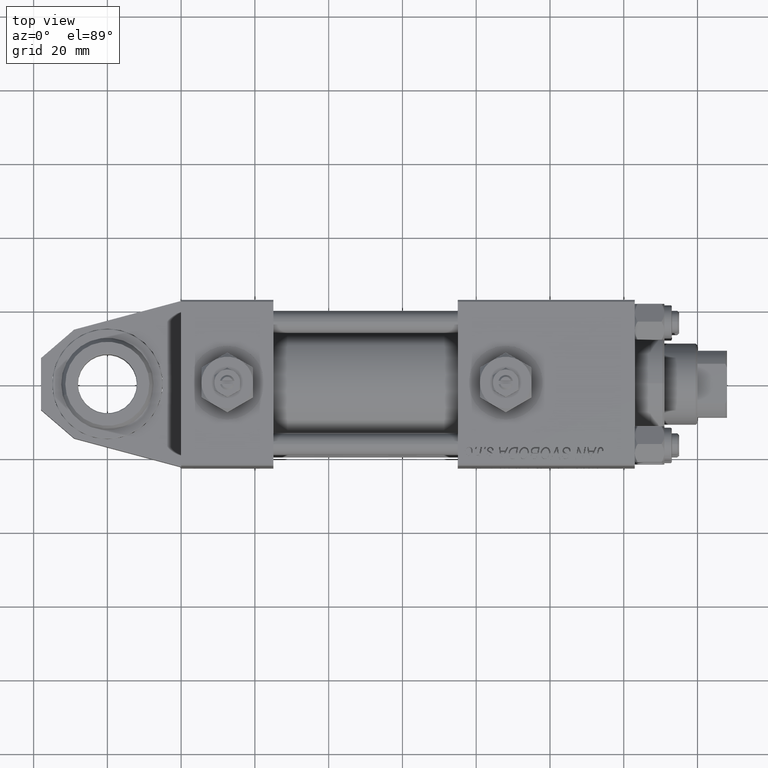
[diagram: clean part render]
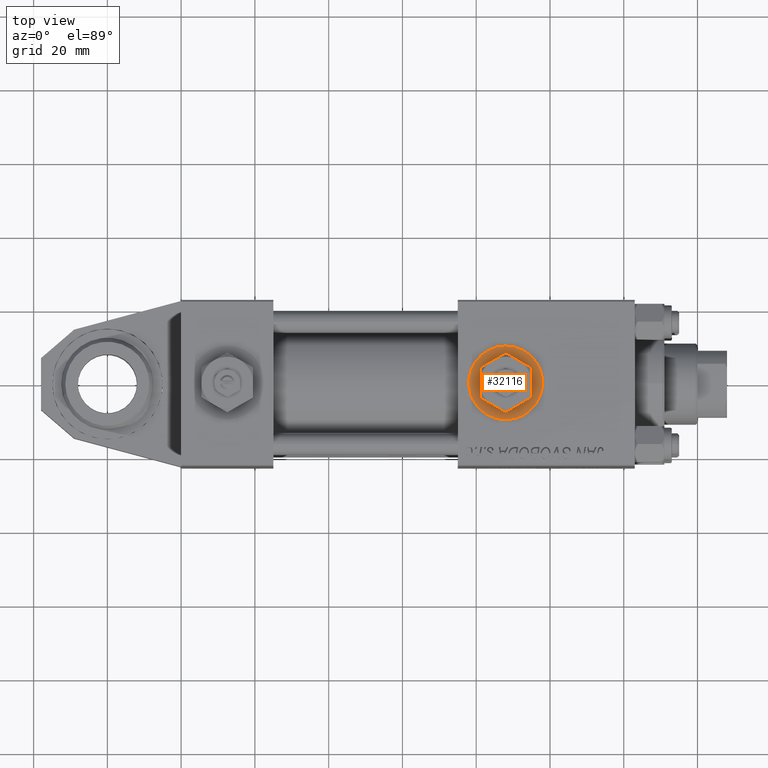
[diagram: same view with one face highlighted and labeled with its STEP entity id]
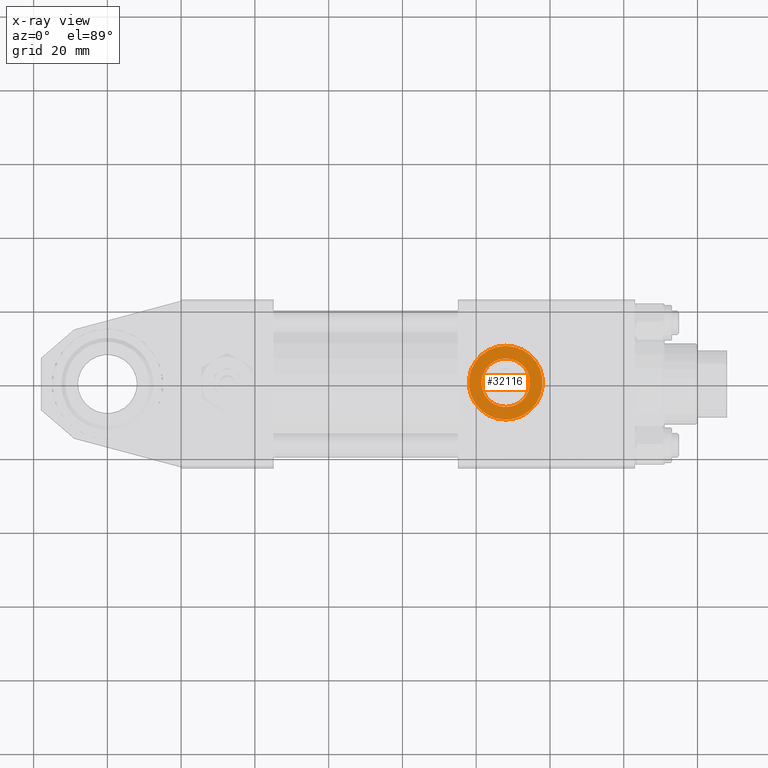
[diagram: x-ray of the same camera — body ghosted, the highlighted face saturated]
A machine part, top view. The second image highlights one B-rep face of the part: STEP entity #32116.
The next image is the same camera in x-ray: the body ghosted, the highlighted face saturated — about 0% of this face is hidden behind the body in this view.
In plain terms, the highlighted planar face has unit normal (0, 0, 1).
Its self-contained STEP definition (entity closure, byte-faithful):
#1945 = DIRECTION ( 'NONE',  ( 0.000000000000000000, 0.000000000000000000, 1.000000000000000000 ) ) ;
#3296 = EDGE_CURVE ( 'NONE', #6426, #6797, #48713, .T. ) ;
#3423 = CARTESIAN_POINT ( 'NONE',  ( 88.00000000000001421, 22.30000000000000426, 6.580000000000002736 ) ) ;
#6127 = DIRECTION ( 'NONE',  ( 0.000000000000000000, -0.000000000000000000, 1.000000000000000000 ) ) ;
#6426 = VERTEX_POINT ( 'NONE', #40681 ) ;
#6797 = VERTEX_POINT ( 'NONE', #3423 ) ;
#7715 = EDGE_LOOP ( 'NONE', ( #49493, #10740 ) ) ;
#8697 = CARTESIAN_POINT ( 'NONE',  ( 88.00000000000001421, 22.30000000000000426, 0.000000000000000000 ) ) ;
#8961 = VERTEX_POINT ( 'NONE', #40627 ) ;
#9808 = FACE_BOUND ( 'NONE', #16062, .T. ) ;
#10075 = FACE_OUTER_BOUND ( 'NONE', #7715, .T. ) ;
#10121 = DIRECTION ( 'NONE',  ( 0.000000000000000000, 1.000000000000000000, 0.000000000000000000 ) ) ;
#10740 = ORIENTED_EDGE ( 'NONE', *, *, #31947, .T. ) ;
#12323 = CIRCLE ( 'NONE', #14848, 9.999999999999994671 ) ;
#14848 = AXIS2_PLACEMENT_3D ( 'NONE', #36759, #45199, #24344 ) ;
#15999 = EDGE_CURVE ( 'NONE', #6797, #6426, #43273, .T. ) ;
#16062 = EDGE_LOOP ( 'NONE', ( #47993, #51884 ) ) ;
#17481 = AXIS2_PLACEMENT_3D ( 'NONE', #49642, #26141, #21645 ) ;
#18027 = CARTESIAN_POINT ( 'NONE',  ( 88.00000000000001421, 22.30000000000000426, 0.000000000000000000 ) ) ;
#21645 = DIRECTION ( 'NONE',  ( 0.000000000000000000, 0.000000000000000000, 1.000000000000000000 ) ) ;
#23991 = DIRECTION ( 'NONE',  ( 0.000000000000000000, 1.000000000000000000, 0.000000000000000000 ) ) ;
#24344 = DIRECTION ( 'NONE',  ( 0.000000000000000000, 0.000000000000000000, 1.000000000000000000 ) ) ;
#26141 = DIRECTION ( 'NONE',  ( 0.000000000000000000, 1.000000000000000000, 0.000000000000000000 ) ) ;
#27332 = EDGE_CURVE ( 'NONE', #30507, #8961, #32387, .T. ) ;
#30507 = VERTEX_POINT ( 'NONE', #42133 ) ;
#31947 = EDGE_CURVE ( 'NONE', #8961, #30507, #12323, .T. ) ;
#32116 = ADVANCED_FACE ( 'NONE', ( #9808, #10075 ), #38057, .T. ) ;
#32282 = AXIS2_PLACEMENT_3D ( 'NONE', #8697, #23991, #35882 ) ;
#32387 = CIRCLE ( 'NONE', #45884, 9.999999999999994671 ) ;
#35882 = DIRECTION ( 'NONE',  ( 0.000000000000000000, 0.000000000000000000, 1.000000000000000000 ) ) ;
#36759 = CARTESIAN_POINT ( 'NONE',  ( 88.00000000000001421, 22.30000000000000426, 0.000000000000000000 ) ) ;
#37527 = CARTESIAN_POINT ( 'NONE',  ( 88.00000000000001421, 22.30000000000000426, 0.000000000000000000 ) ) ;
#38057 = PLANE ( 'NONE',  #49432 ) ;
#40627 = CARTESIAN_POINT ( 'NONE',  ( 88.00000000000001421, 22.30000000000000426, -9.999999999999994671 ) ) ;
#40681 = CARTESIAN_POINT ( 'NONE',  ( 88.00000000000001421, 22.30000000000000426, -6.580000000000002736 ) ) ;
#42133 = CARTESIAN_POINT ( 'NONE',  ( 88.00000000000001421, 22.30000000000000426, 9.999999999999994671 ) ) ;
#42293 = DIRECTION ( 'NONE',  ( 0.000000000000000000, 1.000000000000000000, 0.000000000000000000 ) ) ;
#43273 = CIRCLE ( 'NONE', #32282, 6.580000000000002736 ) ;
#45199 = DIRECTION ( 'NONE',  ( 0.000000000000000000, 1.000000000000000000, 0.000000000000000000 ) ) ;
#45884 = AXIS2_PLACEMENT_3D ( 'NONE', #18027, #10121, #1945 ) ;
#47993 = ORIENTED_EDGE ( 'NONE', *, *, #15999, .F. ) ;
#48713 = CIRCLE ( 'NONE', #17481, 6.580000000000002736 ) ;
#49432 = AXIS2_PLACEMENT_3D ( 'NONE', #37527, #42293, #6127 ) ;
#49493 = ORIENTED_EDGE ( 'NONE', *, *, #27332, .T. ) ;
#49642 = CARTESIAN_POINT ( 'NONE',  ( 88.00000000000001421, 22.30000000000000426, 0.000000000000000000 ) ) ;
#51884 = ORIENTED_EDGE ( 'NONE', *, *, #3296, .F. ) ;